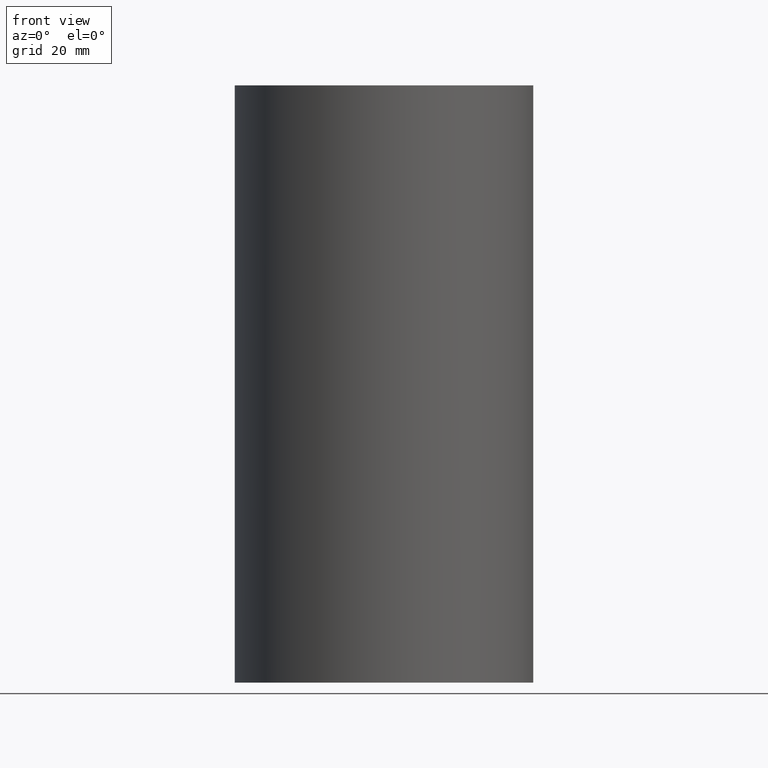
[diagram: clean part render]
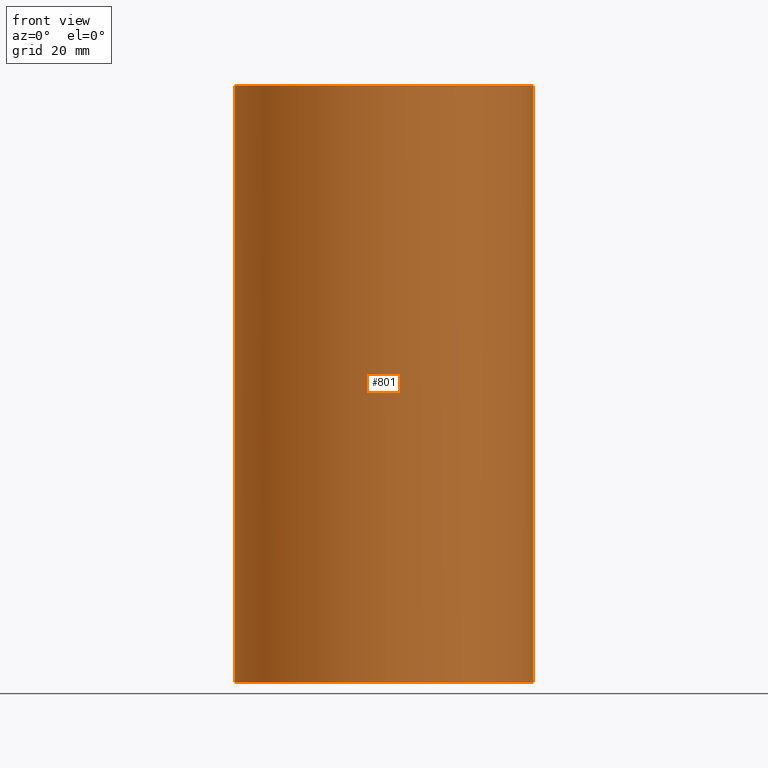
[diagram: same view with one face highlighted and labeled with its STEP entity id]
A machine part, front view. The second image highlights one B-rep face of the part: STEP entity #801.
In plain terms, the highlighted cylindrical surface (bore or boss wall) has radius 25 mm, axis along (0, 0, 1).
Its self-contained STEP definition (entity closure, byte-faithful):
#16=FACE_BOUND('',#106,.T.);
#61=FACE_OUTER_BOUND('',#105,.T.);
#105=EDGE_LOOP('',(#676));
#106=EDGE_LOOP('',(#677));
#189=CIRCLE('',#926,25.);
#190=CIRCLE('',#928,25.);
#351=VERTEX_POINT('',#1464);
#352=VERTEX_POINT('',#1467);
#473=EDGE_CURVE('',#351,#351,#189,.T.);
#474=EDGE_CURVE('',#352,#352,#190,.T.);
#676=ORIENTED_EDGE('',*,*,#473,.F.);
#677=ORIENTED_EDGE('',*,*,#474,.F.);
#759=CYLINDRICAL_SURFACE('',#927,25.);
#801=ADVANCED_FACE('',(#61,#16),#759,.T.);
#926=AXIS2_PLACEMENT_3D('',#1465,#1214,#1215);
#927=AXIS2_PLACEMENT_3D('',#1466,#1216,#1217);
#928=AXIS2_PLACEMENT_3D('',#1468,#1218,#1219);
#1214=DIRECTION('center_axis',(0.,0.,-1.));
#1215=DIRECTION('ref_axis',(-1.,0.,0.));
#1216=DIRECTION('center_axis',(0.,0.,1.));
#1217=DIRECTION('ref_axis',(-1.,0.,0.));
#1218=DIRECTION('center_axis',(0.,0.,1.));
#1219=DIRECTION('ref_axis',(-1.,0.,0.));
#1464=CARTESIAN_POINT('',(25.,3.06161699786838E-15,-50.));
#1465=CARTESIAN_POINT('Origin',(0.,0.,-50.));
#1466=CARTESIAN_POINT('Origin',(0.,0.,0.));
#1467=CARTESIAN_POINT('',(25.,3.06161699786838E-15,50.));
#1468=CARTESIAN_POINT('Origin',(0.,0.,50.));